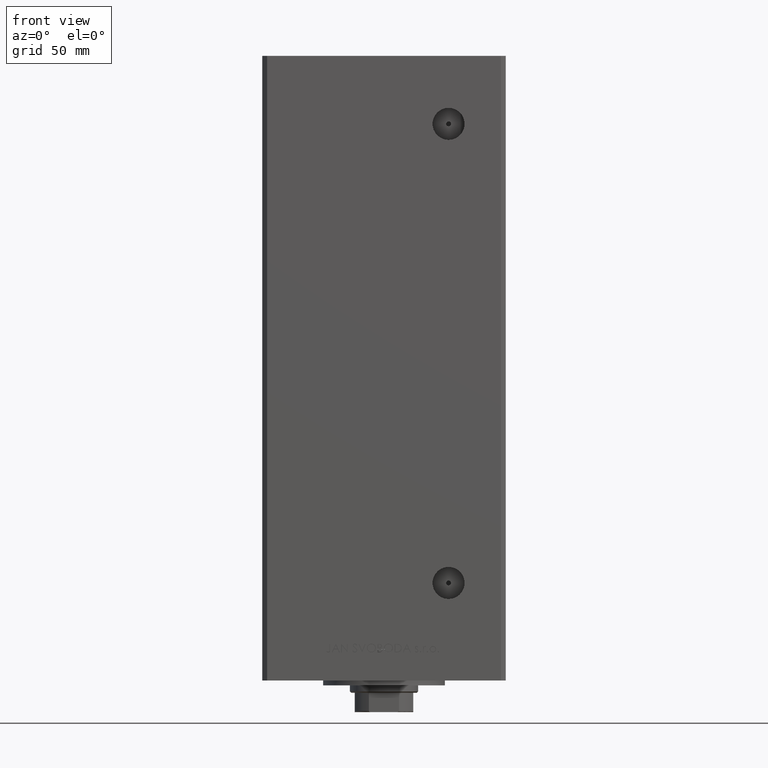
[diagram: clean part render]
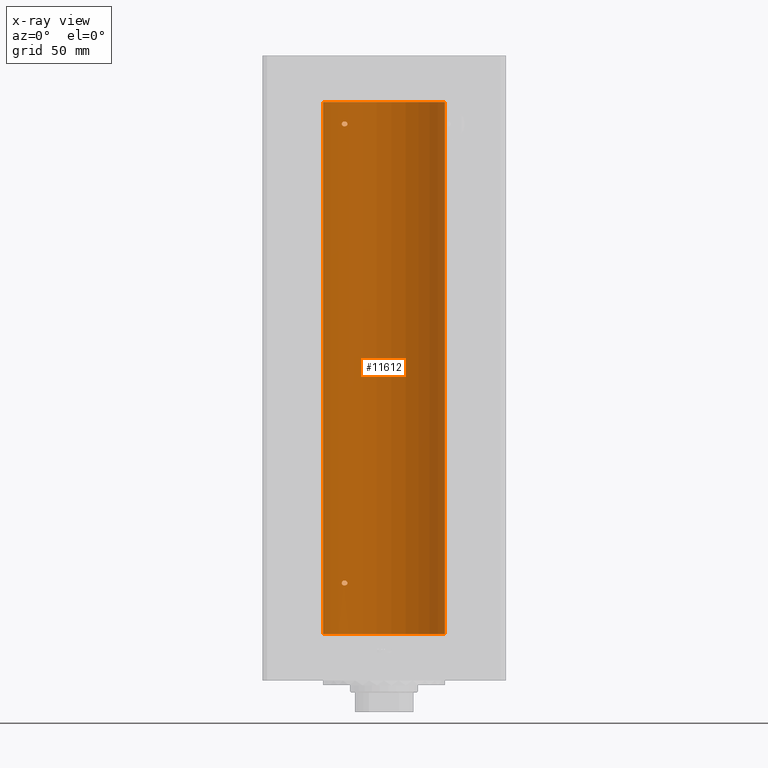
[diagram: x-ray — body ghosted, one internal face saturated and labeled with its STEP entity id]
A machine part, front view, then the same camera in x-ray: the body is ghosted and one INTERNAL B-rep face — a face not visible from any outside direction — is saturated and labeled: STEP entity #11612.
In plain terms, the highlighted cylindrical surface (partial cylindrical patch) has radius 25 mm, axis along (-0, -0, -1).
Its self-contained STEP definition (entity closure, byte-faithful):
#637 = CARTESIAN_POINT ( 'NONE',  ( -15.00000000000002842, 19.99999999999998224, 20.99999999999998934 ) ) ;
#1526 = CARTESIAN_POINT ( 'NONE',  ( -15.06763582406801483, 19.94912143246361325, 21.32506993877174395 ) ) ;
#1746 = EDGE_CURVE ( 'NONE', #7596, #7506, #10874, .T. ) ;
#2248 = FACE_BOUND ( 'NONE', #17049, .T. ) ;
#2282 = CARTESIAN_POINT ( 'NONE',  ( -16.46913072925707056, 18.81168496547888580, 22.00577755881141329 ) ) ;
#2508 = LINE ( 'NONE', #36475, #15107 ) ;
#2712 = DIRECTION ( 'NONE',  ( 1.000000000000000000, 0.000000000000000000, 0.000000000000000000 ) ) ;
#2825 = CARTESIAN_POINT ( 'NONE',  ( -15.34666241858318259, 19.73581294411415854, 208.8121224605376369 ) ) ;
#2893 = CARTESIAN_POINT ( 'NONE',  ( -15.34666241858321634, 19.73581294411414078, 20.31212246053760495 ) ) ;
#2929 = CARTESIAN_POINT ( 'NONE',  ( -16.72476285461317502, 18.58415905903083498, 210.4449447607957211 ) ) ;
#2987 = CARTESIAN_POINT ( 'NONE',  ( 0.000000000000000000, 0.000000000000000000, 218.5000000000000000 ) ) ;
#3208 = ORIENTED_EDGE ( 'NONE', *, *, #48734, .T. ) ;
#3326 = CARTESIAN_POINT ( 'NONE',  ( -15.10490010356605595, 19.92096840819819903, 209.1037666713224894 ) ) ;
#3394 = CARTESIAN_POINT ( 'NONE',  ( -15.06722189748651175, 19.94943357555936458, 20.67598032487887849 ) ) ;
#3531 = DIRECTION ( 'NONE',  ( -0.000000000000000000, -0.000000000000000000, -1.000000000000000000 ) ) ;
#3679 = CARTESIAN_POINT ( 'NONE',  ( -14.99999999999999112, 20.00000000000000711, 209.5000000000000000 ) ) ;
#3844 = CARTESIAN_POINT ( 'NONE',  ( -25.00000000000000000, 0.000000000000000000, 218.5000000000000000 ) ) ;
#4034 = LINE ( 'NONE', #11869, #4439 ) ;
#4439 = VECTOR ( 'NONE', #3531, 1000.000000000000000 ) ;
#5324 = CARTESIAN_POINT ( 'NONE',  ( -15.00000000000021316, 19.99999999999998934, 21.08403880362416061 ) ) ;
#5352 = B_SPLINE_CURVE_WITH_KNOTS ( 'NONE', 3,
 ( #30175, #33727, #18779, #41585, #10168, #29437, #17788, #48697, #18274, #33480, #37544, #22075, #7121, #2825, #33985, #3326, #40847, #10410, #25871, #41340 ),
 .UNSPECIFIED., .F., .F.,
 ( 4, 2, 2, 2, 2, 2, 2, 2, 2, 4 ),
 ( 2.254873622441466949E-16, 0.0005040871078735091300, 0.001008174215746792746, 0.001512261323620076470, 0.002016348431493359978, 0.002520435539366643485, 0.003024522647239927427, 0.003528609755113210501, 0.003780653309049884347, 0.004032696862986557759 ),
 .UNSPECIFIED. ) ;
#5648 = CARTESIAN_POINT ( 'NONE',  ( 25.00000000000000000, 3.061616997868383043E-15, 0.000000000000000000 ) ) ;
#6285 = DIRECTION ( 'NONE',  ( -1.000000000000000000, 0.000000000000000000, 0.000000000000000000 ) ) ;
#6432 = CIRCLE ( 'NONE', #34746, 25.00000000000000000 ) ;
#6682 = CARTESIAN_POINT ( 'NONE',  ( -16.46844752485328911, 18.81003400474351039, 20.01154431903891862 ) ) ;
#6724 = CARTESIAN_POINT ( 'NONE',  ( -15.58230678163759642, 19.55030131031898577, 210.3437394867029582 ) ) ;
#6976 = CARTESIAN_POINT ( 'NONE',  ( -16.99843849356149050, 18.33190197607055794, 210.2468335145757123 ) ) ;
#7121 = CARTESIAN_POINT ( 'NONE',  ( -15.58164749401199956, 19.55082150006405328, 208.6566780726851391 ) ) ;
#7226 = CARTESIAN_POINT ( 'NONE',  ( -16.46913072925702792, 18.81168496547891777, 210.5057775588113884 ) ) ;
#7465 = CARTESIAN_POINT ( 'NONE',  ( -15.23594348686699185, 19.82115246225716021, 210.0887219326858144 ) ) ;
#7506 = VERTEX_POINT ( 'NONE', #30616 ) ;
#7596 = VERTEX_POINT ( 'NONE', #10545 ) ;
#7989 = B_SPLINE_CURVE_WITH_KNOTS ( 'NONE', 3,
 ( #26442, #41409, #14799, #21902, #41910, #33552, #22650, #6682, #38116, #14549, #22144, #41658, #37617, #2893, #11227, #29994, #3394, #15048, #30496, #45967 ),
 .UNSPECIFIED., .F., .F.,
 ( 4, 2, 2, 2, 2, 2, 2, 2, 2, 4 ),
 ( 2.011680962688586771E-16, 0.0005040871078734975291, 0.001008174215746794047, 0.001512261323620090565, 0.002016348431493386866, 0.002520435539366683384, 0.003024522647239979902, 0.003528609755113272951, 0.003780653309049920342, 0.004032696862986568168 ),
 .UNSPECIFIED. ) ;
#8268 = VERTEX_POINT ( 'NONE', #5648 ) ;
#8569 = CARTESIAN_POINT ( 'NONE',  ( 0.000000000000000000, 0.000000000000000000, 218.5000000000000000 ) ) ;
#9840 = FACE_BOUND ( 'NONE', #23915, .T. ) ;
#9873 = CARTESIAN_POINT ( 'NONE',  ( -17.34935157289749696, 17.99999999999998224, 21.17097369060632417 ) ) ;
#10168 = CARTESIAN_POINT ( 'NONE',  ( -17.05249165747618534, 18.28208333366438509, 208.7922192200363725 ) ) ;
#10410 = CARTESIAN_POINT ( 'NONE',  ( -15.01482636753733146, 19.98889854010115741, 209.3312026610076941 ) ) ;
#10522 = CARTESIAN_POINT ( 'NONE',  ( -15.00000000000018474, 20.00000000000002487, 209.5840388036241109 ) ) ;
#10545 = CARTESIAN_POINT ( 'NONE',  ( -14.99999999999999112, 20.00000000000000711, 209.5000000000000000 ) ) ;
#10874 = B_SPLINE_CURVE_WITH_KNOTS ( 'NONE', 3,
 ( #3679, #10522, #25978, #26480, #18885, #7465, #38394, #6724, #22188, #14589, #49788, #7226, #2929, #6976, #49296, #30032, #26228, #41693, #22439, #24361 ),
 .UNSPECIFIED., .F., .F.,
 ( 4, 2, 2, 2, 2, 2, 2, 2, 2, 4 ),
 ( 0.004032696862986557759, 0.004284699222246954667, 0.004536701581507351574, 0.005040706300028082940, 0.005544711018548810835, 0.006048715737069539598, 0.007056725174110996257, 0.007308727533371349797, 0.007560729892631701601, 0.008064734611152412150 ),
 .UNSPECIFIED. ) ;
#11227 = CARTESIAN_POINT ( 'NONE',  ( -15.23538646979301170, 19.82157806413531631, 20.41199989528276149 ) ) ;
#11612 = ADVANCED_FACE ( 'NONE', ( #14397, #9840, #2248 ), #36714, .F. ) ;
#11869 = CARTESIAN_POINT ( 'NONE',  ( -25.00000000000000000, 0.000000000000000000, 218.5000000000000000 ) ) ;
#12894 = VERTEX_POINT ( 'NONE', #637 ) ;
#13934 = CARTESIAN_POINT ( 'NONE',  ( -15.58230678163764260, 19.55030131031895380, 21.84373948670293331 ) ) ;
#14319 = ORIENTED_EDGE ( 'NONE', *, *, #44580, .F. ) ;
#14397 = FACE_OUTER_BOUND ( 'NONE', #50026, .T. ) ;
#14549 = CARTESIAN_POINT ( 'NONE',  ( -16.08757264251635277, 19.13682698743030386, 20.00344276584819525 ) ) ;
#14589 = CARTESIAN_POINT ( 'NONE',  ( -15.95796937689560480, 19.24499537862567422, 210.4757730996522298 ) ) ;
#14799 = CARTESIAN_POINT ( 'NONE',  ( -17.30269557861145202, 18.04515136187498570, 20.66604208175573376 ) ) ;
#15048 = CARTESIAN_POINT ( 'NONE',  ( -15.01482636753736166, 19.98889854010113254, 20.83120266100769769 ) ) ;
#15107 = VECTOR ( 'NONE', #32919, 1000.000000000000000 ) ;
#17049 = EDGE_LOOP ( 'NONE', ( #26135, #39901 ) ) ;
#17192 = DIRECTION ( 'NONE',  ( 1.000000000000000000, 0.000000000000000000, 0.000000000000000000 ) ) ;
#17738 = CARTESIAN_POINT ( 'NONE',  ( -16.72476285461321766, 18.58415905903079945, 21.94494476079569978 ) ) ;
#17788 = CARTESIAN_POINT ( 'NONE',  ( -16.71492528194901794, 18.59135325782701642, 208.5801415583420351 ) ) ;
#18054 = ORIENTED_EDGE ( 'NONE', *, *, #45141, .F. ) ;
#18274 = CARTESIAN_POINT ( 'NONE',  ( -16.34293146994552259, 18.91921593628409681, 208.4973425906725879 ) ) ;
#18779 = CARTESIAN_POINT ( 'NONE',  ( -17.30269557861141294, 18.04515136187502478, 209.1660420817557053 ) ) ;
#18885 = CARTESIAN_POINT ( 'NONE',  ( -15.10490800566735103, 19.92096305044241689, 209.8962931740442457 ) ) ;
#20782 = CARTESIAN_POINT ( 'NONE',  ( -16.08745393861406825, 19.13692152169247507, 21.99650150998692766 ) ) ;
#20939 = VERTEX_POINT ( 'NONE', #21722 ) ;
#21292 = CARTESIAN_POINT ( 'NONE',  ( -17.05007833789895955, 18.28384926940283606, 21.70137399901213371 ) ) ;
#21536 = CARTESIAN_POINT ( 'NONE',  ( -17.34935157289810093, 17.99999999999978328, 21.00000000000008882 ) ) ;
#21722 = CARTESIAN_POINT ( 'NONE',  ( -17.34935157289810093, 17.99999999999978328, 21.00000000000008882 ) ) ;
#21902 = CARTESIAN_POINT ( 'NONE',  ( -17.15234217094410596, 18.18812579706693100, 20.39657304377494640 ) ) ;
#21995 = DIRECTION ( 'NONE',  ( -0.000000000000000000, -0.000000000000000000, -1.000000000000000000 ) ) ;
#22075 = CARTESIAN_POINT ( 'NONE',  ( -15.70664578139651546, 19.45064696206092947, 208.6005795994921925 ) ) ;
#22144 = CARTESIAN_POINT ( 'NONE',  ( -15.95808436639362782, 19.24489366819297942, 20.02426087884952821 ) ) ;
#22188 = CARTESIAN_POINT ( 'NONE',  ( -15.70535969280552280, 19.45169171760802485, 210.3989607721124173 ) ) ;
#22439 = CARTESIAN_POINT ( 'NONE',  ( -17.34935157289746854, 18.00000000000001421, 209.6709736906063029 ) ) ;
#22584 = VERTEX_POINT ( 'NONE', #3844 ) ;
#22650 = CARTESIAN_POINT ( 'NONE',  ( -16.71492528194906768, 18.59135325782697734, 20.08014155834204217 ) ) ;
#23915 = EDGE_LOOP ( 'NONE', ( #26491, #14319 ) ) ;
#24017 = CARTESIAN_POINT ( 'NONE',  ( 0.000000000000000000, 0.000000000000000000, 0.000000000000000000 ) ) ;
#24323 = EDGE_CURVE ( 'NONE', #8268, #41286, #6432, .T. ) ;
#24361 = CARTESIAN_POINT ( 'NONE',  ( -17.34935157289806185, 17.99999999999981526, 209.5000000000001137 ) ) ;
#25038 = AXIS2_PLACEMENT_3D ( 'NONE', #2987, #21995, #6285 ) ;
#25083 = CARTESIAN_POINT ( 'NONE',  ( -15.01476641895664876, 19.98894406010705183, 21.16879456340133459 ) ) ;
#25275 = DIRECTION ( 'NONE',  ( -0.000000000000000000, 0.000000000000000000, 1.000000000000000000 ) ) ;
#25331 = CARTESIAN_POINT ( 'NONE',  ( -15.95796937689564565, 19.24499537862563869, 21.97577309965217651 ) ) ;
#25871 = CARTESIAN_POINT ( 'NONE',  ( -15.00000000000018119, 20.00000000000001421, 209.4159474586024032 ) ) ;
#25978 = CARTESIAN_POINT ( 'NONE',  ( -15.01476641895662567, 19.98894406010707314, 209.6687945634013488 ) ) ;
#26135 = ORIENTED_EDGE ( 'NONE', *, *, #46091, .F. ) ;
#26183 = ORIENTED_EDGE ( 'NONE', *, *, #24323, .F. ) ;
#26228 = CARTESIAN_POINT ( 'NONE',  ( -17.19010376497220705, 18.15221652163111088, 210.0356701235680248 ) ) ;
#26442 = CARTESIAN_POINT ( 'NONE',  ( -17.34935157289810093, 17.99999999999978328, 21.00000000000008882 ) ) ;
#26480 = CARTESIAN_POINT ( 'NONE',  ( -15.06763582406798818, 19.94912143246363811, 209.8250699387717475 ) ) ;
#26491 = ORIENTED_EDGE ( 'NONE', *, *, #36506, .F. ) ;
#28892 = CARTESIAN_POINT ( 'NONE',  ( -17.30163983552693452, 18.04615713653364750, 21.33600747272777909 ) ) ;
#29389 = CARTESIAN_POINT ( 'NONE',  ( -17.14593038898733113, 18.19399314418732061, 21.59594488319649130 ) ) ;
#29437 = CARTESIAN_POINT ( 'NONE',  ( -16.83415218046510731, 18.48332662461726983, 208.6343172662811583 ) ) ;
#29994 = CARTESIAN_POINT ( 'NONE',  ( -15.10490010356607904, 19.92096840819818127, 20.60376667132250716 ) ) ;
#30032 = CARTESIAN_POINT ( 'NONE',  ( -17.14593038898727428, 18.19399314418736324, 210.0959448831964664 ) ) ;
#30175 = CARTESIAN_POINT ( 'NONE',  ( -17.34935157289806185, 17.99999999999981526, 209.5000000000001137 ) ) ;
#30496 = CARTESIAN_POINT ( 'NONE',  ( -15.00000000000022027, 20.00000000000000355, 20.91594745860243165 ) ) ;
#30616 = CARTESIAN_POINT ( 'NONE',  ( -17.34935157289806185, 17.99999999999981526, 209.5000000000001137 ) ) ;
#32013 = B_SPLINE_CURVE_WITH_KNOTS ( 'NONE', 3,
 ( #37251, #5324, #25083, #1526, #33189, #48399, #44108, #13934, #44608, #25331, #20782, #2282, #17738, #36240, #21292, #29389, #36495, #28892, #9873, #21536 ),
 .UNSPECIFIED., .F., .F.,
 ( 4, 2, 2, 2, 2, 2, 2, 2, 2, 4 ),
 ( 0.004032696862986568168, 0.004284699222246932983, 0.004536701581507298665, 0.005040706300028030031, 0.005544711018548761396, 0.006048715737069493628, 0.007056725174110963297, 0.007308727533371326378, 0.007560729892631690326, 0.008064734611152429497 ),
 .UNSPECIFIED. ) ;
#32142 = DIRECTION ( 'NONE',  ( -0.000000000000000000, 0.000000000000000000, 1.000000000000000000 ) ) ;
#32919 = DIRECTION ( 'NONE',  ( -0.000000000000000000, -0.000000000000000000, -1.000000000000000000 ) ) ;
#33189 = CARTESIAN_POINT ( 'NONE',  ( -15.10490800566739011, 19.92096305044238491, 21.39629317404425279 ) ) ;
#33480 = CARTESIAN_POINT ( 'NONE',  ( -16.08757264251632080, 19.13682698743034649, 208.5034427658482059 ) ) ;
#33552 = CARTESIAN_POINT ( 'NONE',  ( -16.83415218046515349, 18.48332662461723785, 20.13431726628115115 ) ) ;
#33727 = CARTESIAN_POINT ( 'NONE',  ( -17.34935157289747210, 18.00000000000002132, 209.3289983604257998 ) ) ;
#33985 = CARTESIAN_POINT ( 'NONE',  ( -15.23538646979298505, 19.82157806413532697, 208.9119998952828041 ) ) ;
#34746 = AXIS2_PLACEMENT_3D ( 'NONE', #24017, #25275, #2712 ) ;
#35110 = AXIS2_PLACEMENT_3D ( 'NONE', #8569, #32142, #17192 ) ;
#36240 = CARTESIAN_POINT ( 'NONE',  ( -16.99843849356152248, 18.33190197607051886, 21.74683351457564839 ) ) ;
#36475 = CARTESIAN_POINT ( 'NONE',  ( 25.00000000000000000, 3.061616997868383043E-15, 218.5000000000000000 ) ) ;
#36495 = CARTESIAN_POINT ( 'NONE',  ( -17.19010376497224968, 18.15221652163108601, 21.53567012356800703 ) ) ;
#36506 = EDGE_CURVE ( 'NONE', #20939, #12894, #7989, .T. ) ;
#36714 = CYLINDRICAL_SURFACE ( 'NONE', #25038, 25.00000000000000000 ) ;
#37251 = CARTESIAN_POINT ( 'NONE',  ( -15.00000000000002842, 19.99999999999998224, 20.99999999999998934 ) ) ;
#37544 = CARTESIAN_POINT ( 'NONE',  ( -15.95808436639360117, 19.24489366819300784, 208.5242608788495886 ) ) ;
#37617 = CARTESIAN_POINT ( 'NONE',  ( -15.58164749401203686, 19.55082150006403907, 20.15667807268518885 ) ) ;
#38116 = CARTESIAN_POINT ( 'NONE',  ( -16.34293146994555812, 18.91921593628406129, 19.99734259067261277 ) ) ;
#38394 = CARTESIAN_POINT ( 'NONE',  ( -15.34624284195505162, 19.73614442075940190, 210.1876185318512853 ) ) ;
#39170 = CIRCLE ( 'NONE', #35110, 25.00000000000000000 ) ;
#39901 = ORIENTED_EDGE ( 'NONE', *, *, #1746, .F. ) ;
#40215 = EDGE_CURVE ( 'NONE', #22584, #41286, #4034, .T. ) ;
#40847 = CARTESIAN_POINT ( 'NONE',  ( -15.06722189748648866, 19.94943357555938590, 209.1759803248789069 ) ) ;
#41286 = VERTEX_POINT ( 'NONE', #47285 ) ;
#41295 = ORIENTED_EDGE ( 'NONE', *, *, #40215, .T. ) ;
#41340 = CARTESIAN_POINT ( 'NONE',  ( -14.99999999999999112, 20.00000000000000711, 209.5000000000000000 ) ) ;
#41409 = CARTESIAN_POINT ( 'NONE',  ( -17.34935157289749696, 17.99999999999998579, 20.82899836042580688 ) ) ;
#41585 = CARTESIAN_POINT ( 'NONE',  ( -17.15234217094406333, 18.18812579706696653, 208.8965730437749073 ) ) ;
#41658 = CARTESIAN_POINT ( 'NONE',  ( -15.70664578139654566, 19.45064696206090105, 20.10057959949211082 ) ) ;
#41693 = CARTESIAN_POINT ( 'NONE',  ( -17.30163983552688833, 18.04615713653367948, 209.8360074727278572 ) ) ;
#41910 = CARTESIAN_POINT ( 'NONE',  ( -17.05249165747622442, 18.28208333366434601, 20.29221922003641509 ) ) ;
#42738 = VERTEX_POINT ( 'NONE', #46434 ) ;
#44108 = CARTESIAN_POINT ( 'NONE',  ( -15.34624284195510135, 19.73614442075936992, 21.68761853185130306 ) ) ;
#44580 = EDGE_CURVE ( 'NONE', #12894, #20939, #32013, .T. ) ;
#44608 = CARTESIAN_POINT ( 'NONE',  ( -15.70535969280557254, 19.45169171760800708, 21.89896077211249192 ) ) ;
#45141 = EDGE_CURVE ( 'NONE', #42738, #8268, #2508, .T. ) ;
#45967 = CARTESIAN_POINT ( 'NONE',  ( -15.00000000000002842, 19.99999999999998224, 20.99999999999998934 ) ) ;
#46091 = EDGE_CURVE ( 'NONE', #7506, #7596, #5352, .T. ) ;
#46434 = CARTESIAN_POINT ( 'NONE',  ( 25.00000000000000000, 3.061616997868383043E-15, 218.5000000000000000 ) ) ;
#47285 = CARTESIAN_POINT ( 'NONE',  ( -25.00000000000000000, 0.000000000000000000, 0.000000000000000000 ) ) ;
#48399 = CARTESIAN_POINT ( 'NONE',  ( -15.23594348686703448, 19.82115246225713179, 21.58872193268582151 ) ) ;
#48697 = CARTESIAN_POINT ( 'NONE',  ( -16.46844752485324648, 18.81003400474354947, 208.5115443190389612 ) ) ;
#48734 = EDGE_CURVE ( 'NONE', #42738, #22584, #39170, .T. ) ;
#49296 = CARTESIAN_POINT ( 'NONE',  ( -17.05007833789892047, 18.28384926940287869, 210.2013739990121337 ) ) ;
#49788 = CARTESIAN_POINT ( 'NONE',  ( -16.08745393861402917, 19.13692152169251059, 210.4965015099869277 ) ) ;
#50026 = EDGE_LOOP ( 'NONE', ( #18054, #3208, #41295, #26183 ) ) ;